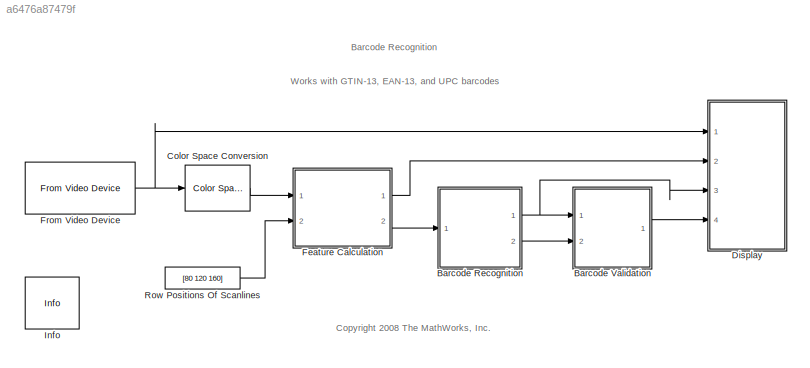
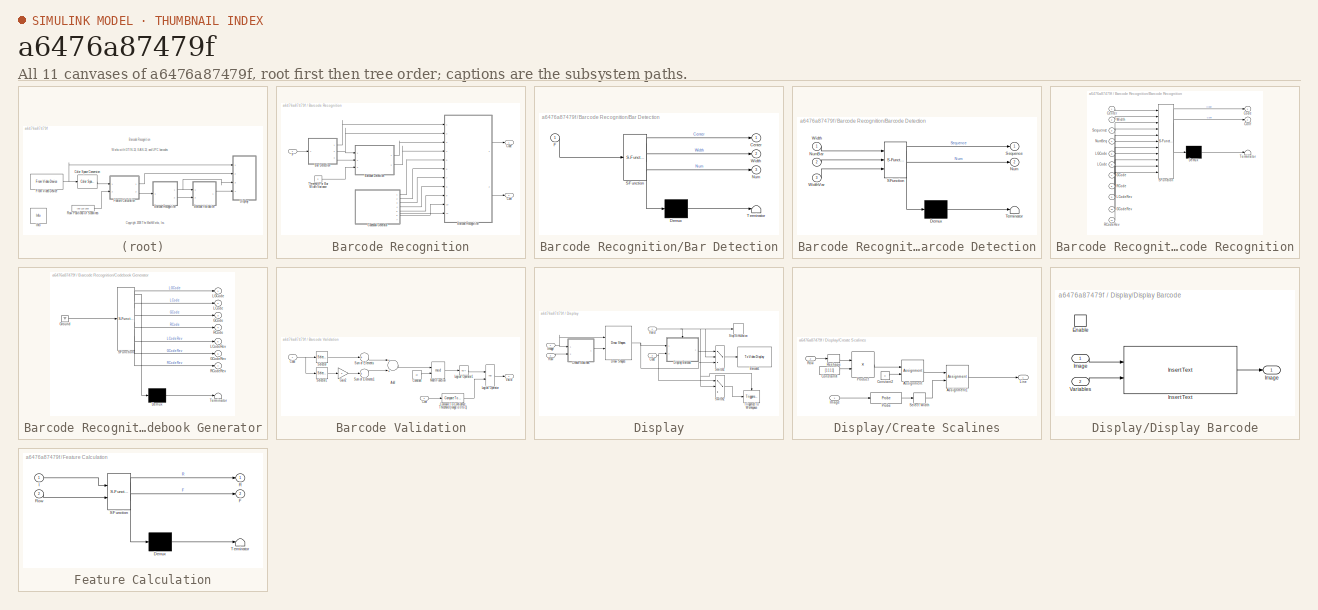
[diagram: thumbnail index - all 11 canvases of the model, root first then tree order]
MODEL slx_a6476a87479f
KIND model
BLOCK [SubSystem] Barcode Recognition
  FunctionWithSeparateData = off
  MaskHideContents = off
  MinAlgLoopOccurrences = off
  Opaque = off
  Ports = [1, 2]
  PropExecContextOutsideSubsystem = off
  RTWSystemCode = Auto
  RequestExecContextInheritance = off
BLOCK [SubSystem] Barcode Recognition/Bar Detection
  ErrorFcn = Stateflow.Translate.translate
  FunctionWithSeparateData = off
  MaskHideContents = off
  MinAlgLoopOccurrences = off
  Opaque = off
  PermitHierarchicalResolution = ExplicitOnly
  Ports = [1, 3]
  PropExecContextOutsideSubsystem = off
  RTWSystemCode = Auto
  RequestExecContextInheritance = off
  SFBlockType = MATLAB Function
  TreatAsAtomicUnit = on
BLOCK [Demux] Barcode Recognition/Bar Detection/ Demux 
  Outputs = 1
  Ports = [1, 1]
BLOCK [S-Function] Barcode Recognition/Bar Detection/ SFunction 
  EnableBusSupport = on
  FunctionName = sf_sfun
  PortCounts = [1 4]
  Ports = [1, 4]
  Tag = Stateflow S-Function vipbarcoderecognition 9
BLOCK [Terminator] Barcode Recognition/Bar Detection/ Terminator 
BLOCK [Outport] Barcode Recognition/Bar Detection/Center
  IconDisplay = Port number
BLOCK [Inport] Barcode Recognition/Bar Detection/F
  IconDisplay = Port number
BLOCK [Outport] Barcode Recognition/Bar Detection/Num
  IconDisplay = Port number
  Port = 3
BLOCK [Outport] Barcode Recognition/Bar Detection/Width
  IconDisplay = Port number
  Port = 2
BLOCK [SubSystem] Barcode Recognition/Barcode Detection
  ErrorFcn = Stateflow.Translate.translate
  FunctionWithSeparateData = off
  MaskHideContents = off
  MinAlgLoopOccurrences = off
  Opaque = off
  PermitHierarchicalResolution = ExplicitOnly
  Ports = [3, 2]
  PropExecContextOutsideSubsystem = off
  RTWSystemCode = Auto
  RequestExecContextInheritance = off
  SFBlockType = MATLAB Function
  TreatAsAtomicUnit = on
BLOCK [Demux] Barcode Recognition/Barcode Detection/ Demux 
  Outputs = 1
  Ports = [1, 1]
BLOCK [S-Function] Barcode Recognition/Barcode Detection/ SFunction 
  EnableBusSupport = on
  FunctionName = sf_sfun
  PortCounts = [3 3]
  Ports = [3, 3]
  Tag = Stateflow S-Function vipbarcoderecognition 10
BLOCK [Terminator] Barcode Recognition/Barcode Detection/ Terminator 
BLOCK [Outport] Barcode Recognition/Barcode Detection/Num
  IconDisplay = Port number
  Port = 2
BLOCK [Inport] Barcode Recognition/Barcode Detection/NumBar
  IconDisplay = Port number
  Port = 2
BLOCK [Outport] Barcode Recognition/Barcode Detection/Sequence
  IconDisplay = Port number
BLOCK [Inport] Barcode Recognition/Barcode Detection/Width
  IconDisplay = Port number
BLOCK [Inport] Barcode Recognition/Barcode Detection/WidthVar
  IconDisplay = Port number
  Port = 3
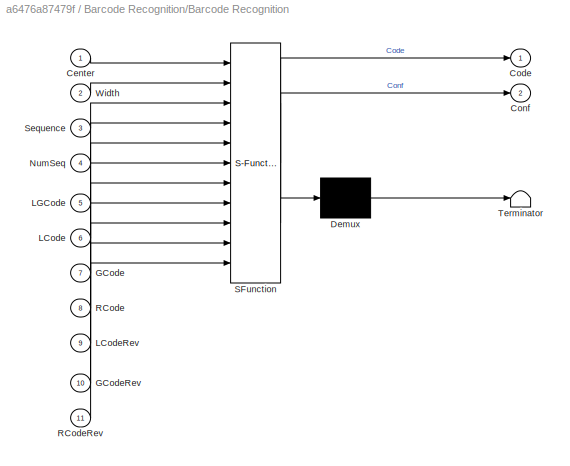
BLOCK [SubSystem] Barcode Recognition/Barcode Recognition
  ErrorFcn = Stateflow.Translate.translate
  FunctionWithSeparateData = off
  MaskHideContents = off
  MinAlgLoopOccurrences = off
  Opaque = off
  PermitHierarchicalResolution = ExplicitOnly
  Ports = [11, 2]
  PropExecContextOutsideSubsystem = off
  RTWSystemCode = Auto
  RequestExecContextInheritance = off
  SFBlockType = MATLAB Function
  TreatAsAtomicUnit = on
BLOCK [Demux] Barcode Recognition/Barcode Recognition/ Demux 
  Outputs = 1
  Ports = [1, 1]
BLOCK [S-Function] Barcode Recognition/Barcode Recognition/ SFunction 
  EnableBusSupport = on
  FunctionName = sf_sfun
  PortCounts = [11 3]
  Ports = [11, 3]
  Tag = Stateflow S-Function vipbarcoderecognition 8
BLOCK [Terminator] Barcode Recognition/Barcode Recognition/ Terminator 
BLOCK [Inport] Barcode Recognition/Barcode Recognition/Center
  IconDisplay = Port number
BLOCK [Outport] Barcode Recognition/Barcode Recognition/Code
  IconDisplay = Port number
BLOCK [Outport] Barcode Recognition/Barcode Recognition/Conf
  IconDisplay = Port number
  Port = 2
BLOCK [Inport] Barcode Recognition/Barcode Recognition/GCode
  IconDisplay = Port number
  Port = 7
BLOCK [Inport] Barcode Recognition/Barcode Recognition/GCodeRev
  IconDisplay = Port number
  Port = 10
BLOCK [Inport] Barcode Recognition/Barcode Recognition/LCode
  IconDisplay = Port number
  Port = 6
BLOCK [Inport] Barcode Recognition/Barcode Recognition/LCodeRev
  IconDisplay = Port number
  Port = 9
BLOCK [Inport] Barcode Recognition/Barcode Recognition/LGCode
  IconDisplay = Port number
  Port = 5
BLOCK [Inport] Barcode Recognition/Barcode Recognition/NumSeq
  IconDisplay = Port number
  Port = 4
BLOCK [Inport] Barcode Recognition/Barcode Recognition/RCode
  IconDisplay = Port number
  Port = 8
BLOCK [Inport] Barcode Recognition/Barcode Recognition/RCodeRev
  IconDisplay = Port number
  Port = 11
BLOCK [Inport] Barcode Recognition/Barcode Recognition/Sequence
  IconDisplay = Port number
  Port = 3
BLOCK [Inport] Barcode Recognition/Barcode Recognition/Width
  IconDisplay = Port number
  Port = 2
BLOCK [Outport] Barcode Recognition/Code
  IconDisplay = Port number
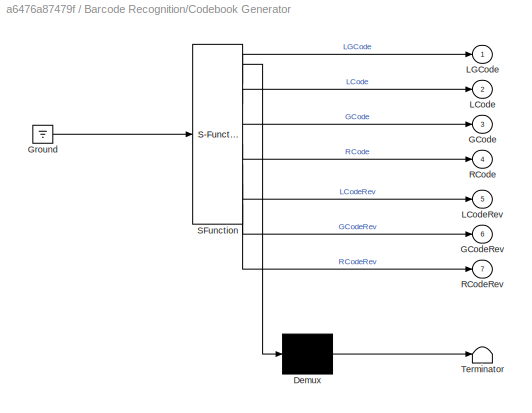
BLOCK [SubSystem] Barcode Recognition/Codebook Generator
  ErrorFcn = Stateflow.Translate.translate
  FunctionWithSeparateData = off
  MaskHideContents = off
  MinAlgLoopOccurrences = off
  Opaque = off
  PermitHierarchicalResolution = ExplicitOnly
  Ports = [0, 7]
  PropExecContextOutsideSubsystem = off
  RTWSystemCode = Auto
  RequestExecContextInheritance = off
  SFBlockType = MATLAB Function
  TreatAsAtomicUnit = on
BLOCK [Demux] Barcode Recognition/Codebook Generator/ Demux 
  Outputs = 1
  Ports = [1, 1]
BLOCK [Ground] Barcode Recognition/Codebook Generator/ Ground 
BLOCK [S-Function] Barcode Recognition/Codebook Generator/ SFunction 
  EnableBusSupport = on
  FunctionName = sf_sfun
  PortCounts = [1 8]
  Ports = [1, 8]
  Tag = Stateflow S-Function vipbarcoderecognition 6
BLOCK [Terminator] Barcode Recognition/Codebook Generator/ Terminator 
BLOCK [Outport] Barcode Recognition/Codebook Generator/GCode
  IconDisplay = Port number
  Port = 3
BLOCK [Outport] Barcode Recognition/Codebook Generator/GCodeRev
  IconDisplay = Port number
  Port = 6
BLOCK [Outport] Barcode Recognition/Codebook Generator/LCode
  IconDisplay = Port number
  Port = 2
BLOCK [Outport] Barcode Recognition/Codebook Generator/LCodeRev
  IconDisplay = Port number
  Port = 5
BLOCK [Outport] Barcode Recognition/Codebook Generator/LGCode
  IconDisplay = Port number
BLOCK [Outport] Barcode Recognition/Codebook Generator/RCode
  IconDisplay = Port number
  Port = 4
BLOCK [Outport] Barcode Recognition/Codebook Generator/RCodeRev
  IconDisplay = Port number
  Port = 7
BLOCK [Outport] Barcode Recognition/Conf
  IconDisplay = Port number
  Port = 2
BLOCK [Inport] Barcode Recognition/F
  IconDisplay = Port number
BLOCK [Constant] Barcode Recognition/Threshold For Bar Width Variance
  OutDataTypeStr = single
  Value = 2
  VectorParams1D = off
BLOCK [SubSystem] Barcode Validation
  FunctionWithSeparateData = off
  MaskHideContents = off
  MinAlgLoopOccurrences = off
  Opaque = off
  Ports = [2, 1]
  PropExecContextOutsideSubsystem = off
  RTWSystemCode = Auto
  RequestExecContextInheritance = off
BLOCK [Sum] Barcode Validation/Add
  AccumDataTypeStr = int32
  AttributesFormatString = Computes\nthe checksum
  InputSameDT = off
  OutDataTypeStr = Inherit: Inherit via internal rule
  Ports = [2, 1]
  SaturateOnIntegerOverflow = off
BLOCK [Inport] Barcode Validation/Code
  IconDisplay = Port number
BLOCK [Reference] Barcode Validation/Compare To Confidence Threshold (range is 0 to 1)  REF=simulink/Logic and Bit
Operations/Compare
To Constant
  OutDataTypeStr = boolean
  Ports = [1, 1]
  SourceBlock = simulink/Logic and Bit\nOperations/Compare\nTo Constant
  SourceType = Compare To Constant
  ZeroCross = off
  const = single(0.7)
  relop = >=
BLOCK [Inport] Barcode Validation/Conf
  IconDisplay = Port number
  Port = 2
BLOCK [Constant] Barcode Validation/Constant
  OutDataTypeStr = int32
  Value = 10
BLOCK [Gain] Barcode Validation/Gain2
  Gain = 3
  OutDataTypeStr = Inherit: Inherit via back propagation
  SaturateOnIntegerOverflow = off
BLOCK [Logic] Barcode Validation/Logical Operator
  AllPortsSameDT = off
  OutDataTypeStr = boolean
  Ports = [2, 1]
BLOCK [Logic] Barcode Validation/Logical Operator1
  AllPortsSameDT = off
  Operator = NOT
  OutDataTypeStr = boolean
  Ports = [1, 1]
BLOCK [Math] Barcode Validation/Math Function
  Operator = mod
  Ports = [2, 1]
BLOCK [Selector] Barcode Validation/Selector
  IndexMode = Zero-based
  IndexOptions = Index vector (dialog)
  Indices = [0 2 4 6 8 10 12]
  InputPortWidth = 13
  OutputSizes = 1
  Ports = [1, 1]
BLOCK [Selector] Barcode Validation/Selector1
  IndexMode = Zero-based
  IndexOptions = Index vector (dialog)
  Indices = [1 3 5 7 9 11]
  InputPortWidth = 13
  OutputSizes = 1
  Ports = [1, 1]
BLOCK [Sum] Barcode Validation/Sum of Elements
  InputSameDT = off
  Inputs = +
  OutDataTypeStr = Inherit: Inherit via internal rule
  Ports = [1, 1]
  SaturateOnIntegerOverflow = off
BLOCK [Sum] Barcode Validation/Sum of Elements1
  InputSameDT = off
  Inputs = +
  OutDataTypeStr = Inherit: Inherit via internal rule
  Ports = [1, 1]
  SaturateOnIntegerOverflow = off
BLOCK [Outport] Barcode Validation/Valid
  IconDisplay = Port number
BLOCK [Reference] Color Space Conversion  REF=visionconversions/Color Space
 Conversion
  Ports = [1, 1]
  SourceBlock = visionconversions/Color Space\n Conversion
  SourceType = Color Space Conversion
  conversion = Obsolete
  conversionActive = R'G'B' to intensity
  imagePorts = One multidimensional signal
  rec = Rec. 601 (SDTV)
  sys = 1125/60/2:1
  wp_str = D65
BLOCK [SubSystem] Display
  FunctionWithSeparateData = off
  MaskHideContents = off
  MinAlgLoopOccurrences = off
  Opaque = off
  Ports = [4]
  PropExecContextOutsideSubsystem = off
  RTWSystemCode = Auto
  RequestExecContextInheritance = off
BLOCK [Reference] Display/Barcode1  REF=visionsinks/To Video Display
  OutputDevice = On-screen video monitor
  Ports = [1]
  SourceBlock = visionsinks/To Video Display
  SourceType = To Video Display
  dataOrg = Column-major
  fullScreen = off
  imagePorts = One multidimensional signal
  inputColorFormat = RGB
  inputType = Obsolete
  isWindowOpen = off
  openAtMdlStart = on
  saveWindowSize = off
  videoWindowHeight = 480
  videoWindowWidth = 640
  videoWindowX = 220
  videoWindowY = 163
BLOCK [Inport] Display/Code
  IconDisplay = Port number
  Port = 3
BLOCK [SubSystem] Display/Create Scalines
  FunctionWithSeparateData = off
  MaskHideContents = off
  MinAlgLoopOccurrences = off
  Opaque = off
  Ports = [2, 1]
  PropExecContextOutsideSubsystem = off
  RTWSystemCode = Auto
  RequestExecContextInheritance = off
BLOCK [Assignment] Display/Create Scalines/Assignment
  IndexOptions = Assign all,Index vector (dialog)
  Indices = 1,1
  NumberOfDimensions = 2
  OutputSizes = 1,1
  Ports = [2, 1]
BLOCK [Assignment] Display/Create Scalines/Assignment1
  IndexOptions = Assign all,Index vector (dialog)
  Indices = 3,3
  NumberOfDimensions = 2
  OutputSizes = 1,1
  Ports = [2, 1]
BLOCK [Constant] Display/Create Scalines/Constant2
  OutDataTypeStr = Inherit: Inherit via back propagation
  Value = 0
  VectorParams1D = off
BLOCK [Constant] Display/Create Scalines/Constant4
  OutDataTypeStr = Inherit: Inherit via back propagation
  Value = [1 1 1 1]
  VectorParams1D = off
BLOCK [Inport] Display/Create Scalines/Image
  IconDisplay = Port number
BLOCK [Outport] Display/Create Scalines/Line
  IconDisplay = Port number
BLOCK [Probe] Display/Create Scalines/Probe
  Ports = [1, 1]
  ProbeComplexSignal = off
  ProbeDimensionsDataType = int32
  ProbeSampleTime = off
  ProbeSignalDimensions = on
  ProbeWidth = off
BLOCK [Product] Display/Create Scalines/Product
  InputSameDT = off
  Multiplication = Matrix(*)
  OutDataTypeStr = Inherit: Inherit via back propagation
  Ports = [2, 1]
  SaturateOnIntegerOverflow = off
BLOCK [Reshape] Display/Create Scalines/Reshape
  OutputDimensionality = Column vector (2-D)
  Ports = [1, 1]
BLOCK [Inport] Display/Create Scalines/Row
  IconDisplay = Port number
  Port = 2
BLOCK [Selector] Display/Create Scalines/Select Width
  IndexOptions = Index vector (dialog)
  Indices = 2
  InputPortWidth = 3
  OutputSizes = 1
  Ports = [1, 1]
BLOCK [SubSystem] Display/Display Barcode
  FunctionWithSeparateData = off
  MaskHideContents = off
  MinAlgLoopOccurrences = off
  Opaque = off
  Ports = [2, 1, 1]
  PropExecContextOutsideSubsystem = off
  RTWSystemCode = Auto
  RequestExecContextInheritance = off
  TreatAsAtomicUnit = on
BLOCK [EnablePort] Display/Display Barcode/Enable
  Ports = []
  PropagateVarSize = During execution
BLOCK [Inport] Display/Display Barcode/Image
  IconDisplay = Port number
BLOCK [Outport] Display/Display Barcode/Image 
  IconDisplay = Port number
BLOCK [Reference] Display/Display Barcode/Insert Text  REF=visiontextngfix/Insert Text
  Ports = [2, 1]
  SourceBlock = visiontextngfix/Insert Text
  SourceType = Insert Text
  antiAliased = on
  blockFontSize = 28
  dummyVar1 = 0
  dummyVar2 = 0
  dummyVar3 = 0
  dummyVar4 = 0
  fontFace = LucidaSansRegular
  getTextColorFrom = Specify via dialog
  getTextIntensityFrom = Specify via dialog
  getTextLocFrom = Specify via dialog
  getTextOpacityFrom = Specify via dialog
  imagePorts = One multidimensional signal
  inputType = Obsolete
  isInputTransposed = off
  textColor = [1 1 0]
  textIntensity = 0
  textLoc = [20 20]
  textOpacity = 1.0
  theText = '%d%d%d%d%d%d%d%d%d%d%d%d%d'
BLOCK [Inport] Display/Display Barcode/Variables
  IconDisplay = Port number
  Port = 2
BLOCK [Reference] Display/Draw Shapes  REF=visiontextngfix/Draw Shapes
  LockScale = off
  Ports = [2, 1]
  SourceBlock = visiontextngfix/Draw Shapes
  SourceType = Draw Shapes
  accumFracLength = 14
  accumMode = Same as product output
  accumWordLength = 32
  antialiasing = off
  color = [1 0 0]
  display = User-specified value
  fill = off
  fillClrSource = Specify via dialog
  imagePorts = One multidimensional signal
  inType = Obsolete
  intensity = 200
  memoryFracLength = 15
  memoryMode = Specify word length
  memoryWordLength = 16
  opacity = 0.6
  overflowMode = off
  prodOutputFracLength = 14
  prodOutputMode = Binary point scaling
  prodOutputWordLength = 32
  roundingMode = Floor
  shape = Lines
  viewport = Entire image
BLOCK [Inport] Display/Image
  IconDisplay = Port number
BLOCK [Inport] Display/Row
  IconDisplay = Port number
  Port = 2
BLOCK [Stop] Display/Stop Simulation
BLOCK [Switch] Display/Switch1
  Criteria = u2 ~= 0
  InputSameDT = off
  SaturateOnIntegerOverflow = off
BLOCK [Switch] Display/Switch2
  Criteria = u2 ~= 0
  InputSameDT = off
  SaturateOnIntegerOverflow = off
BLOCK [Reference] Display/Triggered To Workspace  REF=dspsnks4/Triggered
To Workspace
  Buffer = 1
  Decimation = 1
  FixptAsFi = off
  Ports = [1, 0, 0, 1]
  Save2DMode = 2-D array (concatenate along first dimension)
  SourceBlock = dspsnks4/Triggered\nTo Workspace
  SourceType = Triggered To Workspace
  TriggerType = Rising edge
  UserDataPersistent = on
  VariableName = kod
BLOCK [Inport] Display/Valid
  IconDisplay = Port number
  Port = 4
BLOCK [SubSystem] Feature Calculation
  ErrorFcn = Stateflow.Translate.translate
  FunctionWithSeparateData = off
  MaskHideContents = off
  MinAlgLoopOccurrences = off
  Opaque = off
  PermitHierarchicalResolution = ExplicitOnly
  Ports = [2, 2]
  PropExecContextOutsideSubsystem = off
  RTWSystemCode = Auto
  RequestExecContextInheritance = off
  SFBlockType = MATLAB Function
  TreatAsAtomicUnit = on
BLOCK [Demux] Feature Calculation/ Demux 
  Outputs = 1
  Ports = [1, 1]
BLOCK [S-Function] Feature Calculation/ SFunction 
  EnableBusSupport = on
  FunctionName = sf_sfun
  PortCounts = [2 3]
  Ports = [2, 3]
  Tag = Stateflow S-Function vipbarcoderecognition 7
BLOCK [Terminator] Feature Calculation/ Terminator 
BLOCK [Outport] Feature Calculation/F
  IconDisplay = Port number
  Port = 2
BLOCK [Inport] Feature Calculation/I
  IconDisplay = Port number
BLOCK [Outport] Feature Calculation/R
  IconDisplay = Port number
BLOCK [Inport] Feature Calculation/Row
  IconDisplay = Port number
  Port = 2
BLOCK [Reference] From Video Device  REF=imaqlib/From Video Device
  BayerSensorAlignment = grbg
  BlockHandle = 2147.0004
  CanDoHWTrigger = no
  DataType = single
  DevXMLPath = C:\Program Files\MATLAB\R2013a\toolbox\imaq\imaqadaptors\win64
  Device = winvideo 1 (USB2.0 Camera)
  DeviceMenu = winvideo 1 (USB2.0 Camera)
  EnableHWTrigger = off
  EngLibPath = C:\Program Files\MATLAB\R2013a\toolbox\imaq\imaqblks\imaqmex\win64
  EngXMLPath = C:\Program Files\MATLAB\R2013a\toolbox\imaq\imaq\private
  ObjConstructor = videoinput('winvideo', 1)
  OutputPortsMode = One multidimensional signal
  Ports = [0, 1]
  ROIColumn = 0
  ROIHeight = 240
  ROIPosition = [0 0 240 320]
  ROIRow = 0
  ROIWidth = 320
  ReturnedColorSpace = rgb
  SampleTime = 1/30
  SourceBlock = imaqlib/From Video Device
  SourceType = From Video Device
  TriggerConfiguration = none/none
  UserDataPersistent = on
  VideoFormat = MJPG_320x240
  VideoFormatMenu = MJPG_320x240
  VideoSource = input1
BLOCK [Reference] Info  REF=vipmisc/Info
  FunctionWithSeparateData = off
  GeneratePreprocessorConditionals = off
  Ports = []
  ShowPortLabels = FromPortIcon
  SourceBlock = vipmisc/Info
  SourceType = Info
  SystemSampleTime = -1
BLOCK [Constant] Row Positions Of Scanlines
  OutDataTypeStr = double
  Value = [80 120 160]
  VectorParams1D = off
ANNOTATION (root): Barcode Recognition
ANNOTATION (root): <copyright redacted>
ANNOTATION (root): Works with GTIN-13, EAN-13, and UPC barcodes
LINE Barcode Recognition/Bar Detection:1 -> Barcode Recognition/Barcode Recognition:1
NET Barcode Recognition/Bar Detection:2 -> Barcode Recognition/Barcode Detection:1, Barcode Recognition/Barcode Recognition:2
LINE Barcode Recognition/Bar Detection:3 -> Barcode Recognition/Barcode Detection:2
LINE Barcode Recognition/Barcode Detection:1 -> Barcode Recognition/Barcode Recognition:3
LINE Barcode Recognition/Barcode Detection:2 -> Barcode Recognition/Barcode Recognition:4
LINE Barcode Recognition/Barcode Recognition:1 -> Barcode Recognition/Code:1
LINE Barcode Recognition/Barcode Recognition:2 -> Barcode Recognition/Conf:1
LINE Barcode Recognition/Codebook Generator:1 -> Barcode Recognition/Barcode Recognition:5
LINE Barcode Recognition/Codebook Generator:2 -> Barcode Recognition/Barcode Recognition:6
LINE Barcode Recognition/Codebook Generator:3 -> Barcode Recognition/Barcode Recognition:7
LINE Barcode Recognition/Codebook Generator:4 -> Barcode Recognition/Barcode Recognition:8
LINE Barcode Recognition/Codebook Generator:5 -> Barcode Recognition/Barcode Recognition:9
LINE Barcode Recognition/Codebook Generator:6 -> Barcode Recognition/Barcode Recognition:10
LINE Barcode Recognition/Codebook Generator:7 -> Barcode Recognition/Barcode Recognition:11
LINE Barcode Recognition/F:1 -> Barcode Recognition/Bar Detection:1
LINE Barcode Recognition/Threshold For Bar Width Variance:1 -> Barcode Recognition/Barcode Detection:3
NET Barcode Recognition:1 -> Barcode Validation:1, Display:3
LINE Barcode Recognition:2 -> Barcode Validation:2
LINE Barcode Validation/Add:1 -> Barcode Validation/Math Function:1
NET Barcode Validation/Code:1 -> Barcode Validation/Selector1:1, Barcode Validation/Selector:1
LINE Barcode Validation/Compare To Confidence Threshold (range is 0 to 1):1 -> Barcode Validation/Logical Operator:2
LINE Barcode Validation/Conf:1 -> Barcode Validation/Compare To Confidence Threshold (range is 0 to 1):1
LINE Barcode Validation/Constant:1 -> Barcode Validation/Math Function:2
LINE Barcode Validation/Gain2:1 -> Barcode Validation/Sum of Elements1:1
LINE Barcode Validation/Logical Operator1:1 -> Barcode Validation/Logical Operator:1
LINE Barcode Validation/Logical Operator:1 -> Barcode Validation/Valid:1
LINE Barcode Validation/Math Function:1 -> Barcode Validation/Logical Operator1:1
LINE Barcode Validation/Selector1:1 -> Barcode Validation/Gain2:1
LINE Barcode Validation/Selector:1 -> Barcode Validation/Sum of Elements:1
LINE Barcode Validation/Sum of Elements1:1 -> Barcode Validation/Add:2
LINE Barcode Validation/Sum of Elements:1 -> Barcode Validation/Add:1
LINE Barcode Validation:1 -> Display:4
LINE Color Space Conversion:1 -> Feature Calculation:1
NET Display/Code:1 -> Display/Display Barcode:2, Display/Switch2:1
LINE Display/Create Scalines/Assignment1:1 -> Display/Create Scalines/Line:1
LINE Display/Create Scalines/Assignment:1 -> Display/Create Scalines/Assignment1:1
LINE Display/Create Scalines/Constant2:1 -> Display/Create Scalines/Assignment:2
LINE Display/Create Scalines/Constant4:1 -> Display/Create Scalines/Product:2
LINE Display/Create Scalines/Image:1 -> Display/Create Scalines/Probe:1
LINE Display/Create Scalines/Probe:1 -> Display/Create Scalines/Select Width:1
LINE Display/Create Scalines/Product:1 -> Display/Create Scalines/Assignment:1
LINE Display/Create Scalines/Reshape:1 -> Display/Create Scalines/Product:1
LINE Display/Create Scalines/Row:1 -> Display/Create Scalines/Reshape:1
LINE Display/Create Scalines/Select Width:1 -> Display/Create Scalines/Assignment1:2
LINE Display/Create Scalines:1 -> Display/Draw Shapes:2
LINE Display/Display Barcode/Image:1 -> Display/Display Barcode/Insert Text:1
LINE Display/Display Barcode/Insert Text:1 -> Display/Display Barcode/Image :1
LINE Display/Display Barcode/Variables:1 -> Display/Display Barcode/Insert Text:2
LINE Display/Display Barcode:1 -> Display/Switch1:1
NET Display/Draw Shapes:1 -> Display/Display Barcode:1, Display/Switch1:3
NET Display/Image:1 -> Display/Create Scalines:1, Display/Draw Shapes:1
LINE Display/Row:1 -> Display/Create Scalines:2
LINE Display/Switch1:1 -> Display/Barcode1:1
LINE Display/Switch2:1 -> Display/Triggered To Workspace:1
NET Display/Valid:1 -> Display/Display Barcode:enable, Display/Stop Simulation:1, Display/Switch1:2, Display/Switch2:2, Display/Triggered To Workspace:trigger
LINE Feature Calculation:1 -> Display:2
LINE Feature Calculation:2 -> Barcode Recognition:1
NET From Video Device:1 -> Color Space Conversion:1, Display:1
LINE Row Positions Of Scanlines:1 -> Feature Calculation:2
note: NET lines group one-source signal fan-out (src -> all destinations, sorted); 1:1 wires keep LINE
